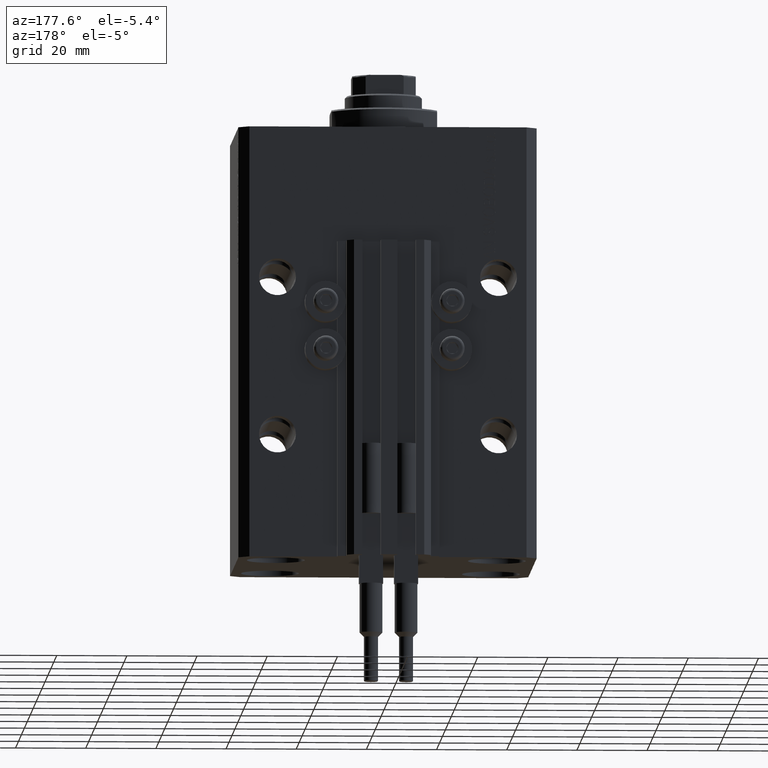
[diagram: clean part render]
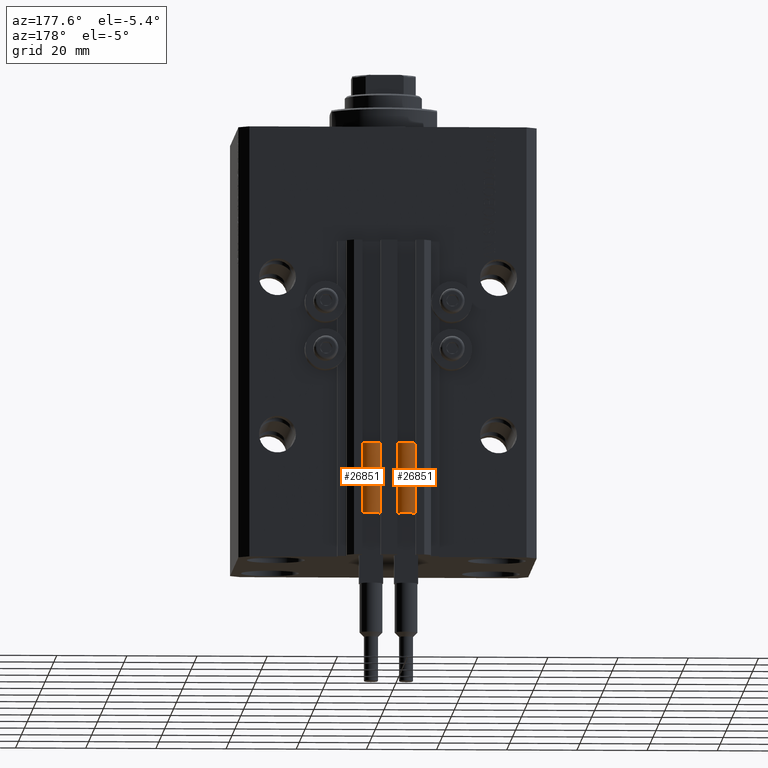
[diagram: same view with one multi-face feature highlighted, each face labeled with its STEP entity id]
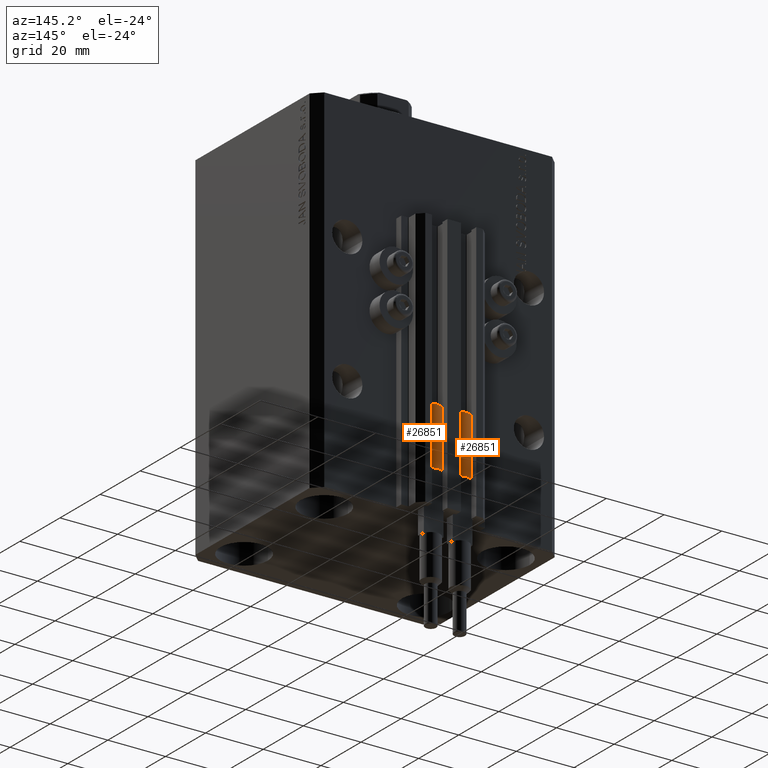
[diagram: same view with one multi-face feature highlighted, each face labeled with its STEP entity id]
A machine part, auxiliary view. The highlighted faces form ONE feature: a constant-radius fillet chain: 2 tangent blend faces with common blend radius 3.4 mm. The faces share edges in the B-rep.
A second angle (auxiliary view) of the same feature is appended — it is thin or edge-on in the first view.
Their STEP definitions:
[1] entity #26851 (Cylinder):
#23 = CARTESIAN_POINT ( 'NONE',  ( 0.000000000000000000, 0.000000000000000000, 20.00000000000000000 ) ) ;
#247 = EDGE_CURVE ( 'NONE', #22040, #25865, #963, .T. ) ;
#963 = CIRCLE ( 'NONE', #4910, 3.400000000000000355 ) ;
#1487 = EDGE_CURVE ( 'NONE', #26457, #29772, #16789, .T. ) ;
#2331 = FACE_OUTER_BOUND ( 'NONE', #39195, .T. ) ;
#2753 = CARTESIAN_POINT ( 'NONE',  ( 3.400000000000000355, 0.000000000000000000, 20.00000000000000000 ) ) ;
#3081 = ORIENTED_EDGE ( 'NONE', *, *, #1487, .F. ) ;
#4910 = AXIS2_PLACEMENT_3D ( 'NONE', #45685, #15988, #8070 ) ;
#5310 = CARTESIAN_POINT ( 'NONE',  ( 3.400000000000000355, 4.163799117101001052E-16, 0.000000000000000000 ) ) ;
#7103 = CARTESIAN_POINT ( 'NONE',  ( 0.000000000000000000, 0.000000000000000000, 0.000000000000000000 ) ) ;
#7698 = CARTESIAN_POINT ( 'NONE',  ( -3.400000000000000355, 0.000000000000000000, 20.00000000000000000 ) ) ;
#8070 = DIRECTION ( 'NONE',  ( 1.000000000000000000, 0.000000000000000000, 0.000000000000000000 ) ) ;
#8166 = DIRECTION ( 'NONE',  ( 1.000000000000000000, 0.000000000000000000, 0.000000000000000000 ) ) ;
#8180 = LINE ( 'NONE', #7698, #42326 ) ;
#8920 = EDGE_CURVE ( 'NONE', #29772, #22040, #16933, .T. ) ;
#9109 = LINE ( 'NONE', #17036, #47812 ) ;
#9261 = ORIENTED_EDGE ( 'NONE', *, *, #8920, .F. ) ;
#13136 = CARTESIAN_POINT ( 'NONE',  ( 3.051229260478471428, 1.500000000000000000, 20.00000000000000000 ) ) ;
#15250 = ORIENTED_EDGE ( 'NONE', *, *, #32993, .T. ) ;
#15988 = DIRECTION ( 'NONE',  ( 0.000000000000000000, 0.000000000000000000, 1.000000000000000000 ) ) ;
#16789 = CIRCLE ( 'NONE', #37353, 3.400000000000000355 ) ;
#16933 = CIRCLE ( 'NONE', #21665, 3.400000000000000355 ) ;
#17036 = CARTESIAN_POINT ( 'NONE',  ( 3.400000000000000355, 4.163799117101001052E-16, 20.00000000000000000 ) ) ;
#18242 = DIRECTION ( 'NONE',  ( 1.000000000000000000, 0.000000000000000000, 0.000000000000000000 ) ) ;
#19031 = CARTESIAN_POINT ( 'NONE',  ( -3.051229260478471428, 1.500000000000000000, 20.00000000000000000 ) ) ;
#21233 = DIRECTION ( 'NONE',  ( -0.000000000000000000, -0.000000000000000000, -1.000000000000000000 ) ) ;
#21584 = CARTESIAN_POINT ( 'NONE',  ( 0.000000000000000000, 0.000000000000000000, 20.00000000000000000 ) ) ;
#21665 = AXIS2_PLACEMENT_3D ( 'NONE', #23, #30197, #8166 ) ;
#22040 = VERTEX_POINT ( 'NONE', #19031 ) ;
#22317 = DIRECTION ( 'NONE',  ( 0.000000000000000000, 0.000000000000000000, 1.000000000000000000 ) ) ;
#24771 = AXIS2_PLACEMENT_3D ( 'NONE', #28294, #43400, #32513 ) ;
#25865 = VERTEX_POINT ( 'NONE', #45880 ) ;
#26457 = VERTEX_POINT ( 'NONE', #2753 ) ;
#26851 = ADVANCED_FACE ( 'NONE', ( #2331 ), #28050, .T. ) ;
#28050 = CYLINDRICAL_SURFACE ( 'NONE', #24771, 3.400000000000000355 ) ;
#28294 = CARTESIAN_POINT ( 'NONE',  ( 0.000000000000000000, 0.000000000000000000, 20.00000000000000000 ) ) ;
#29196 = EDGE_CURVE ( 'NONE', #26457, #43589, #9109, .T. ) ;
#29772 = VERTEX_POINT ( 'NONE', #13136 ) ;
#30197 = DIRECTION ( 'NONE',  ( 0.000000000000000000, 0.000000000000000000, 1.000000000000000000 ) ) ;
#30531 = CIRCLE ( 'NONE', #31283, 3.400000000000000355 ) ;
#31283 = AXIS2_PLACEMENT_3D ( 'NONE', #7103, #32839, #18242 ) ;
#31696 = EDGE_CURVE ( 'NONE', #25865, #48884, #8180, .T. ) ;
#32513 = DIRECTION ( 'NONE',  ( -1.000000000000000000, 0.000000000000000000, 0.000000000000000000 ) ) ;
#32839 = DIRECTION ( 'NONE',  ( 0.000000000000000000, 0.000000000000000000, 1.000000000000000000 ) ) ;
#32993 = EDGE_CURVE ( 'NONE', #43589, #48884, #30531, .T. ) ;
#33200 = DIRECTION ( 'NONE',  ( 1.000000000000000000, 0.000000000000000000, 0.000000000000000000 ) ) ;
#37353 = AXIS2_PLACEMENT_3D ( 'NONE', #21584, #22317, #33200 ) ;
#37736 = CARTESIAN_POINT ( 'NONE',  ( -3.400000000000000355, 0.000000000000000000, 0.000000000000000000 ) ) ;
#39195 = EDGE_LOOP ( 'NONE', ( #3081, #47977, #15250, #43833, #47775, #9261 ) ) ;
#41596 = DIRECTION ( 'NONE',  ( -0.000000000000000000, -0.000000000000000000, -1.000000000000000000 ) ) ;
#42326 = VECTOR ( 'NONE', #41596, 1000.000000000000000 ) ;
#43400 = DIRECTION ( 'NONE',  ( -0.000000000000000000, -0.000000000000000000, -1.000000000000000000 ) ) ;
#43589 = VERTEX_POINT ( 'NONE', #5310 ) ;
#43833 = ORIENTED_EDGE ( 'NONE', *, *, #31696, .F. ) ;
#45685 = CARTESIAN_POINT ( 'NONE',  ( 0.000000000000000000, 0.000000000000000000, 20.00000000000000000 ) ) ;
#45880 = CARTESIAN_POINT ( 'NONE',  ( -3.399999999999999467, -4.915049848600952119E-16, 20.00000000000000000 ) ) ;
#47775 = ORIENTED_EDGE ( 'NONE', *, *, #247, .F. ) ;
#47812 = VECTOR ( 'NONE', #21233, 1000.000000000000000 ) ;
#47977 = ORIENTED_EDGE ( 'NONE', *, *, #29196, .T. ) ;
#48884 = VERTEX_POINT ( 'NONE', #37736 ) ;
[2] entity #26851 (Cylinder):
#23 = CARTESIAN_POINT ( 'NONE',  ( 0.000000000000000000, 0.000000000000000000, 20.00000000000000000 ) ) ;
#247 = EDGE_CURVE ( 'NONE', #22040, #25865, #963, .T. ) ;
#963 = CIRCLE ( 'NONE', #4910, 3.400000000000000355 ) ;
#1487 = EDGE_CURVE ( 'NONE', #26457, #29772, #16789, .T. ) ;
#2331 = FACE_OUTER_BOUND ( 'NONE', #39195, .T. ) ;
#2753 = CARTESIAN_POINT ( 'NONE',  ( 3.400000000000000355, 0.000000000000000000, 20.00000000000000000 ) ) ;
#3081 = ORIENTED_EDGE ( 'NONE', *, *, #1487, .F. ) ;
#4910 = AXIS2_PLACEMENT_3D ( 'NONE', #45685, #15988, #8070 ) ;
#5310 = CARTESIAN_POINT ( 'NONE',  ( 3.400000000000000355, 4.163799117101001052E-16, 0.000000000000000000 ) ) ;
#7103 = CARTESIAN_POINT ( 'NONE',  ( 0.000000000000000000, 0.000000000000000000, 0.000000000000000000 ) ) ;
#7698 = CARTESIAN_POINT ( 'NONE',  ( -3.400000000000000355, 0.000000000000000000, 20.00000000000000000 ) ) ;
#8070 = DIRECTION ( 'NONE',  ( 1.000000000000000000, 0.000000000000000000, 0.000000000000000000 ) ) ;
#8166 = DIRECTION ( 'NONE',  ( 1.000000000000000000, 0.000000000000000000, 0.000000000000000000 ) ) ;
#8180 = LINE ( 'NONE', #7698, #42326 ) ;
#8920 = EDGE_CURVE ( 'NONE', #29772, #22040, #16933, .T. ) ;
#9109 = LINE ( 'NONE', #17036, #47812 ) ;
#9261 = ORIENTED_EDGE ( 'NONE', *, *, #8920, .F. ) ;
#13136 = CARTESIAN_POINT ( 'NONE',  ( 3.051229260478471428, 1.500000000000000000, 20.00000000000000000 ) ) ;
#15250 = ORIENTED_EDGE ( 'NONE', *, *, #32993, .T. ) ;
#15988 = DIRECTION ( 'NONE',  ( 0.000000000000000000, 0.000000000000000000, 1.000000000000000000 ) ) ;
#16789 = CIRCLE ( 'NONE', #37353, 3.400000000000000355 ) ;
#16933 = CIRCLE ( 'NONE', #21665, 3.400000000000000355 ) ;
#17036 = CARTESIAN_POINT ( 'NONE',  ( 3.400000000000000355, 4.163799117101001052E-16, 20.00000000000000000 ) ) ;
#18242 = DIRECTION ( 'NONE',  ( 1.000000000000000000, 0.000000000000000000, 0.000000000000000000 ) ) ;
#19031 = CARTESIAN_POINT ( 'NONE',  ( -3.051229260478471428, 1.500000000000000000, 20.00000000000000000 ) ) ;
#21233 = DIRECTION ( 'NONE',  ( -0.000000000000000000, -0.000000000000000000, -1.000000000000000000 ) ) ;
#21584 = CARTESIAN_POINT ( 'NONE',  ( 0.000000000000000000, 0.000000000000000000, 20.00000000000000000 ) ) ;
#21665 = AXIS2_PLACEMENT_3D ( 'NONE', #23, #30197, #8166 ) ;
#22040 = VERTEX_POINT ( 'NONE', #19031 ) ;
#22317 = DIRECTION ( 'NONE',  ( 0.000000000000000000, 0.000000000000000000, 1.000000000000000000 ) ) ;
#24771 = AXIS2_PLACEMENT_3D ( 'NONE', #28294, #43400, #32513 ) ;
#25865 = VERTEX_POINT ( 'NONE', #45880 ) ;
#26457 = VERTEX_POINT ( 'NONE', #2753 ) ;
#26851 = ADVANCED_FACE ( 'NONE', ( #2331 ), #28050, .T. ) ;
#28050 = CYLINDRICAL_SURFACE ( 'NONE', #24771, 3.400000000000000355 ) ;
#28294 = CARTESIAN_POINT ( 'NONE',  ( 0.000000000000000000, 0.000000000000000000, 20.00000000000000000 ) ) ;
#29196 = EDGE_CURVE ( 'NONE', #26457, #43589, #9109, .T. ) ;
#29772 = VERTEX_POINT ( 'NONE', #13136 ) ;
#30197 = DIRECTION ( 'NONE',  ( 0.000000000000000000, 0.000000000000000000, 1.000000000000000000 ) ) ;
#30531 = CIRCLE ( 'NONE', #31283, 3.400000000000000355 ) ;
#31283 = AXIS2_PLACEMENT_3D ( 'NONE', #7103, #32839, #18242 ) ;
#31696 = EDGE_CURVE ( 'NONE', #25865, #48884, #8180, .T. ) ;
#32513 = DIRECTION ( 'NONE',  ( -1.000000000000000000, 0.000000000000000000, 0.000000000000000000 ) ) ;
#32839 = DIRECTION ( 'NONE',  ( 0.000000000000000000, 0.000000000000000000, 1.000000000000000000 ) ) ;
#32993 = EDGE_CURVE ( 'NONE', #43589, #48884, #30531, .T. ) ;
#33200 = DIRECTION ( 'NONE',  ( 1.000000000000000000, 0.000000000000000000, 0.000000000000000000 ) ) ;
#37353 = AXIS2_PLACEMENT_3D ( 'NONE', #21584, #22317, #33200 ) ;
#37736 = CARTESIAN_POINT ( 'NONE',  ( -3.400000000000000355, 0.000000000000000000, 0.000000000000000000 ) ) ;
#39195 = EDGE_LOOP ( 'NONE', ( #3081, #47977, #15250, #43833, #47775, #9261 ) ) ;
#41596 = DIRECTION ( 'NONE',  ( -0.000000000000000000, -0.000000000000000000, -1.000000000000000000 ) ) ;
#42326 = VECTOR ( 'NONE', #41596, 1000.000000000000000 ) ;
#43400 = DIRECTION ( 'NONE',  ( -0.000000000000000000, -0.000000000000000000, -1.000000000000000000 ) ) ;
#43589 = VERTEX_POINT ( 'NONE', #5310 ) ;
#43833 = ORIENTED_EDGE ( 'NONE', *, *, #31696, .F. ) ;
#45685 = CARTESIAN_POINT ( 'NONE',  ( 0.000000000000000000, 0.000000000000000000, 20.00000000000000000 ) ) ;
#45880 = CARTESIAN_POINT ( 'NONE',  ( -3.399999999999999467, -4.915049848600952119E-16, 20.00000000000000000 ) ) ;
#47775 = ORIENTED_EDGE ( 'NONE', *, *, #247, .F. ) ;
#47812 = VECTOR ( 'NONE', #21233, 1000.000000000000000 ) ;
#47977 = ORIENTED_EDGE ( 'NONE', *, *, #29196, .T. ) ;
#48884 = VERTEX_POINT ( 'NONE', #37736 ) ;